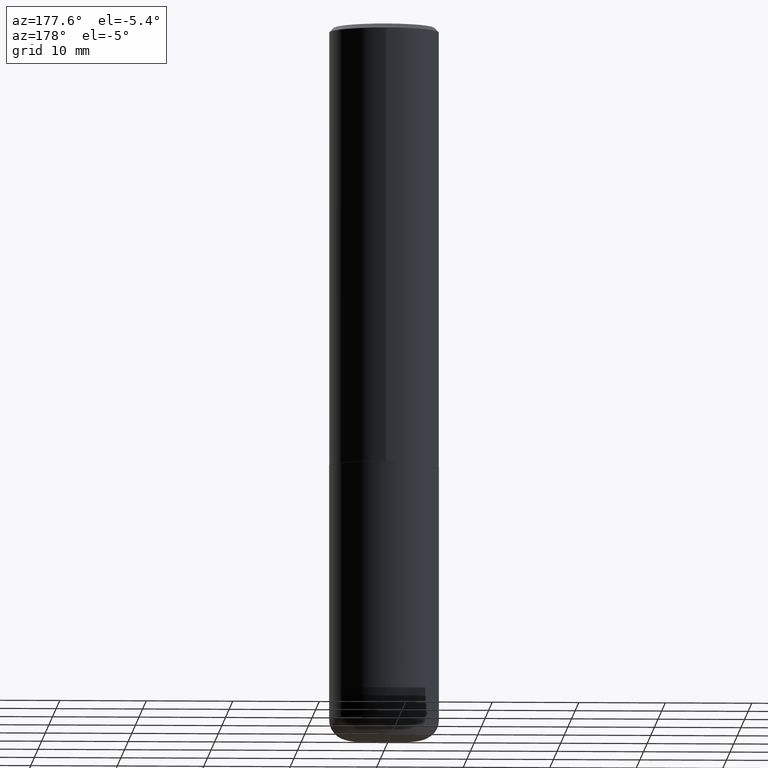
[diagram: clean part render]
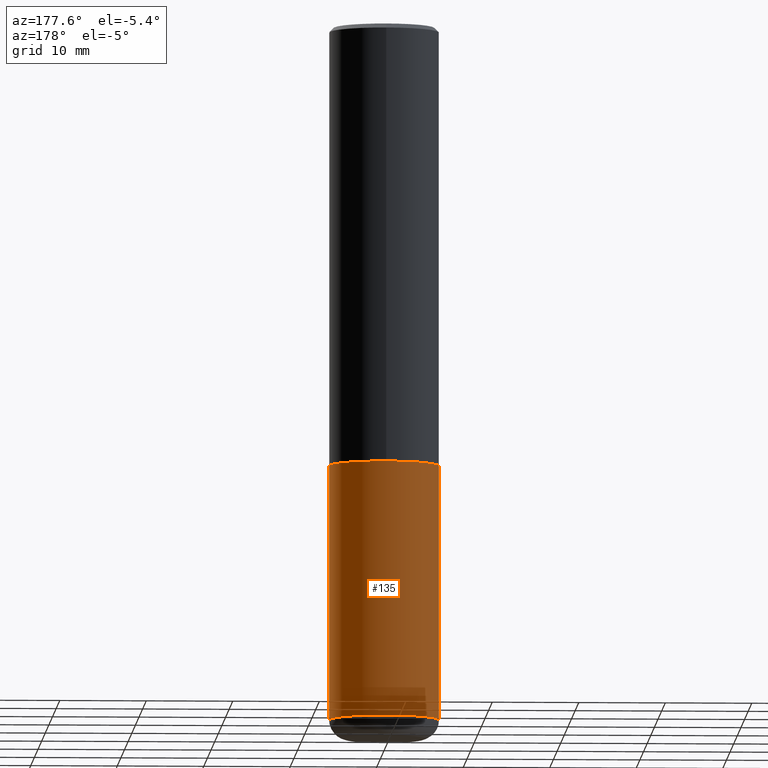
[diagram: same view with one face highlighted and labeled with its STEP entity id]
A machine part, auxiliary view. The second image highlights one B-rep face of the part: STEP entity #135.
In plain terms, the highlighted cylindrical surface (partial cylindrical patch) has radius 6.35 mm, axis along (-0, 0, 1).
Its self-contained STEP definition (entity closure, byte-faithful):
#5 = ORIENTED_EDGE ( 'NONE', *, *, #278, .F. ) ;
#23 = CIRCLE ( 'NONE', #94, 0.2500000000000000555 ) ;
#28 = LINE ( 'NONE', #73, #317 ) ;
#45 = VERTEX_POINT ( 'NONE', #190 ) ;
#52 = DIRECTION ( 'NONE',  ( -2.445468806185136597E-29, 3.491481338843145583E-15, 1.000000000000000000 ) ) ;
#53 = VERTEX_POINT ( 'NONE', #350 ) ;
#70 = DIRECTION ( 'NONE',  ( 1.000000000000000000, -6.982962677686266711E-15, 4.876176775795935793E-29 ) ) ;
#73 = CARTESIAN_POINT ( 'NONE',  ( -0.2500000000000000000, 1.776356839400250465E-15, -1.229733772563726445E-29 ) ) ;
#82 = VECTOR ( 'NONE', #271, 39.37007874015748143 ) ;
#85 = CARTESIAN_POINT ( 'NONE',  ( 4.890937612370273194E-29, -6.982962677686291165E-15, -2.000000000000000000 ) ) ;
#94 = AXIS2_PLACEMENT_3D ( 'NONE', #388, #156, #152 ) ;
#100 = CIRCLE ( 'NONE', #332, 0.2500000000000000000 ) ;
#101 = LINE ( 'NONE', #300, #82 ) ;
#104 = VERTEX_POINT ( 'NONE', #356 ) ;
#128 = CARTESIAN_POINT ( 'NONE',  ( 0.2499999999999998612, -1.277882170016590626E-14, -3.160000000000000142 ) ) ;
#134 = EDGE_CURVE ( 'NONE', #136, #45, #23, .T. ) ;
#135 = ADVANCED_FACE ( 'NONE', ( #258 ), #357, .T. ) ;
#136 = VERTEX_POINT ( 'NONE', #128 ) ;
#152 = DIRECTION ( 'NONE',  ( 1.000000000000000000, -6.982962677686269077E-15, 0.000000000000000000 ) ) ;
#156 = DIRECTION ( 'NONE',  ( -2.445468806185136597E-29, 3.491481338843145583E-15, 1.000000000000000000 ) ) ;
#171 = DIRECTION ( 'NONE',  ( -2.445468806185136877E-29, 3.491481338843145188E-15, 1.000000000000000000 ) ) ;
#179 = EDGE_CURVE ( 'NONE', #45, #104, #28, .T. ) ;
#180 = ORIENTED_EDGE ( 'NONE', *, *, #134, .T. ) ;
#190 = CARTESIAN_POINT ( 'NONE',  ( -0.2499999999999998612, -9.256724191344090697E-15, -3.160000000000000142 ) ) ;
#192 = AXIS2_PLACEMENT_3D ( 'NONE', #289, #384, #70 ) ;
#251 = ORIENTED_EDGE ( 'NONE', *, *, #179, .T. ) ;
#258 = FACE_OUTER_BOUND ( 'NONE', #392, .T. ) ;
#259 = EDGE_CURVE ( 'NONE', #136, #53, #101, .T. ) ;
#271 = DIRECTION ( 'NONE',  ( -2.445468806185136877E-29, 3.491481338843145188E-15, 1.000000000000000000 ) ) ;
#278 = EDGE_CURVE ( 'NONE', #53, #104, #100, .T. ) ;
#289 = CARTESIAN_POINT ( 'NONE',  ( 0.000000000000000000, 0.000000000000000000, 0.000000000000000000 ) ) ;
#300 = CARTESIAN_POINT ( 'NONE',  ( 0.2500000000000000000, -1.745740669421566678E-15, 1.219044193948983948E-29 ) ) ;
#317 = VECTOR ( 'NONE', #171, 39.37007874015748143 ) ;
#332 = AXIS2_PLACEMENT_3D ( 'NONE', #85, #52, #338 ) ;
#338 = DIRECTION ( 'NONE',  ( 1.000000000000000000, -6.982962677686266711E-15, 0.000000000000000000 ) ) ;
#350 = CARTESIAN_POINT ( 'NONE',  ( 0.2500000000000000000, -8.728703347107857054E-15, -2.000000000000000000 ) ) ;
#356 = CARTESIAN_POINT ( 'NONE',  ( -0.2500000000000000000, -7.231665014815064515E-15, -2.000000000000000000 ) ) ;
#357 = CYLINDRICAL_SURFACE ( 'NONE', #192, 0.2500000000000000000 ) ;
#364 = ORIENTED_EDGE ( 'NONE', *, *, #259, .F. ) ;
#384 = DIRECTION ( 'NONE',  ( -2.445468806185136597E-29, 3.491481338843145583E-15, 1.000000000000000000 ) ) ;
#388 = CARTESIAN_POINT ( 'NONE',  ( 7.727681427545032274E-29, -1.103308103074433958E-14, -3.160000000000000142 ) ) ;
#392 = EDGE_LOOP ( 'NONE', ( #180, #251, #5, #364 ) ) ;